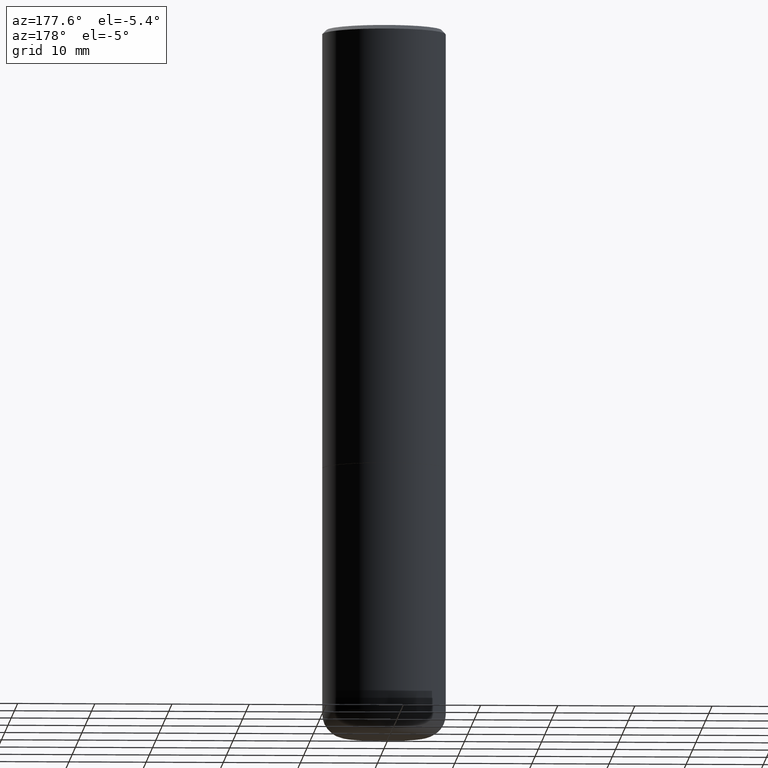
[diagram: clean part render]
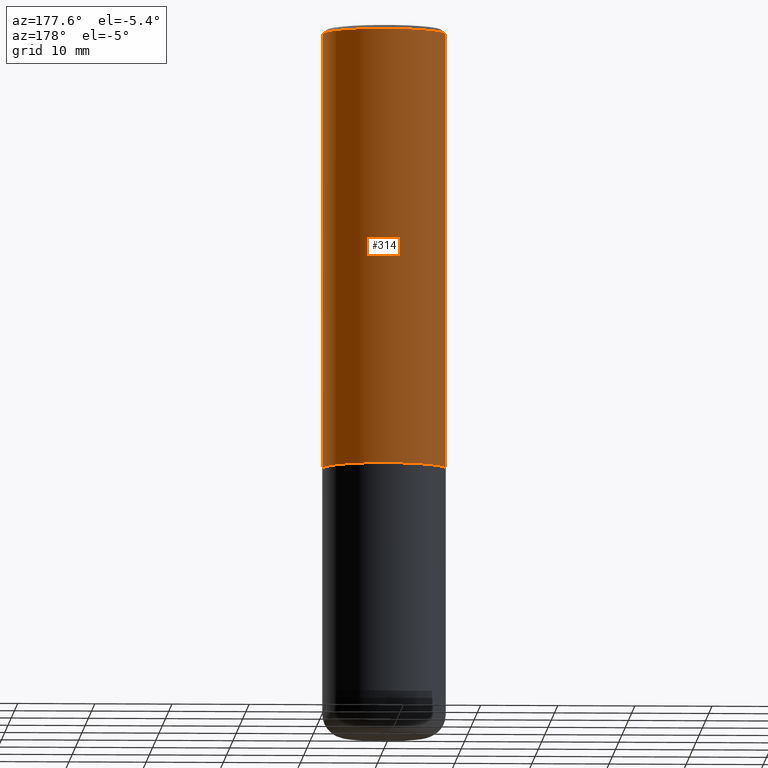
[diagram: same view with one face highlighted and labeled with its STEP entity id]
A machine part, auxiliary view. The second image highlights one B-rep face of the part: STEP entity #314.
In plain terms, the highlighted cylindrical surface (partial cylindrical patch) has radius 7.9997 mm, axis along (-0, 0, 1).
Its self-contained STEP definition (entity closure, byte-faithful):
#2 = EDGE_CURVE ( 'NONE', #321, #258, #166, .T. ) ;
#5 = CARTESIAN_POINT ( 'NONE',  ( 0.3149500000000002853, -1.003067673836246727E-14, -2.242999999999999883 ) ) ;
#8 = CARTESIAN_POINT ( 'NONE',  ( 0.3149500000000000077, -2.230543471175007450E-15, -0.02000000000000006981 ) ) ;
#10 = CIRCLE ( 'NONE', #148, 0.3149500000000002853 ) ;
#13 = EDGE_CURVE ( 'NONE', #211, #258, #276, .T. ) ;
#39 = VECTOR ( 'NONE', #54, 39.37007874015748143 ) ;
#54 = DIRECTION ( 'NONE',  ( -2.445468806185136877E-29, 3.491481338843145188E-15, 1.000000000000000000 ) ) ;
#64 = CARTESIAN_POINT ( 'NONE',  ( -0.3149500000000000077, 2.129454468560426573E-15, -0.02000000000000006981 ) ) ;
#81 = DIRECTION ( 'NONE',  ( -2.445468806185136877E-29, 3.491481338843145188E-15, 1.000000000000000000 ) ) ;
#98 = DIRECTION ( 'NONE',  ( -2.445468806185136597E-29, 3.491481338843145583E-15, 1.000000000000000000 ) ) ;
#102 = VERTEX_POINT ( 'NONE', #5 ) ;
#107 = DIRECTION ( 'NONE',  ( -2.445468806185136597E-29, 3.491481338843145583E-15, 1.000000000000000000 ) ) ;
#136 = AXIS2_PLACEMENT_3D ( 'NONE', #156, #98, #330 ) ;
#148 = AXIS2_PLACEMENT_3D ( 'NONE', #326, #107, #403 ) ;
#156 = CARTESIAN_POINT ( 'NONE',  ( 4.890937612370289799E-31, -6.982962677686315028E-17, -0.02000000000000006981 ) ) ;
#164 = FACE_OUTER_BOUND ( 'NONE', #329, .T. ) ;
#165 = EDGE_CURVE ( 'NONE', #102, #211, #10, .T. ) ;
#166 = CIRCLE ( 'NONE', #136, 0.3149500000000000077 ) ;
#171 = AXIS2_PLACEMENT_3D ( 'NONE', #357, #305, #275 ) ;
#173 = CARTESIAN_POINT ( 'NONE',  ( -0.3149500000000001743, 2.237854346276436774E-15, -1.549218606675783237E-29 ) ) ;
#176 = VECTOR ( 'NONE', #81, 39.37007874015748143 ) ;
#205 = LINE ( 'NONE', #335, #39 ) ;
#211 = VERTEX_POINT ( 'NONE', #252 ) ;
#215 = ORIENTED_EDGE ( 'NONE', *, *, #13, .T. ) ;
#218 = CYLINDRICAL_SURFACE ( 'NONE', #171, 0.3149500000000001743 ) ;
#252 = CARTESIAN_POINT ( 'NONE',  ( -0.3149500000000002853, -1.712756788624580222E-15, -2.242999999999999883 ) ) ;
#258 = VERTEX_POINT ( 'NONE', #64 ) ;
#275 = DIRECTION ( 'NONE',  ( 1.000000000000000000, -6.982962677686265922E-15, 4.876176775795935232E-29 ) ) ;
#276 = LINE ( 'NONE', #173, #176 ) ;
#305 = DIRECTION ( 'NONE',  ( -2.445468806185136597E-29, 3.491481338843145583E-15, 1.000000000000000000 ) ) ;
#308 = ORIENTED_EDGE ( 'NONE', *, *, #396, .F. ) ;
#314 = ADVANCED_FACE ( 'NONE', ( #164 ), #218, .T. ) ;
#321 = VERTEX_POINT ( 'NONE', #8 ) ;
#326 = CARTESIAN_POINT ( 'NONE',  ( 5.485186532273261485E-29, -7.831392643025175821E-15, -2.242999999999999883 ) ) ;
#329 = EDGE_LOOP ( 'NONE', ( #377, #215, #386, #308 ) ) ;
#330 = DIRECTION ( 'NONE',  ( 1.000000000000000000, -6.982962677686266711E-15, 0.000000000000000000 ) ) ;
#335 = CARTESIAN_POINT ( 'NONE',  ( 0.3149500000000001743, -2.199284095337290660E-15, 1.535751875536930690E-29 ) ) ;
#357 = CARTESIAN_POINT ( 'NONE',  ( 0.000000000000000000, 0.000000000000000000, 0.000000000000000000 ) ) ;
#377 = ORIENTED_EDGE ( 'NONE', *, *, #165, .T. ) ;
#386 = ORIENTED_EDGE ( 'NONE', *, *, #2, .F. ) ;
#396 = EDGE_CURVE ( 'NONE', #102, #321, #205, .T. ) ;
#403 = DIRECTION ( 'NONE',  ( 1.000000000000000000, -6.982962677686267499E-15, 0.000000000000000000 ) ) ;